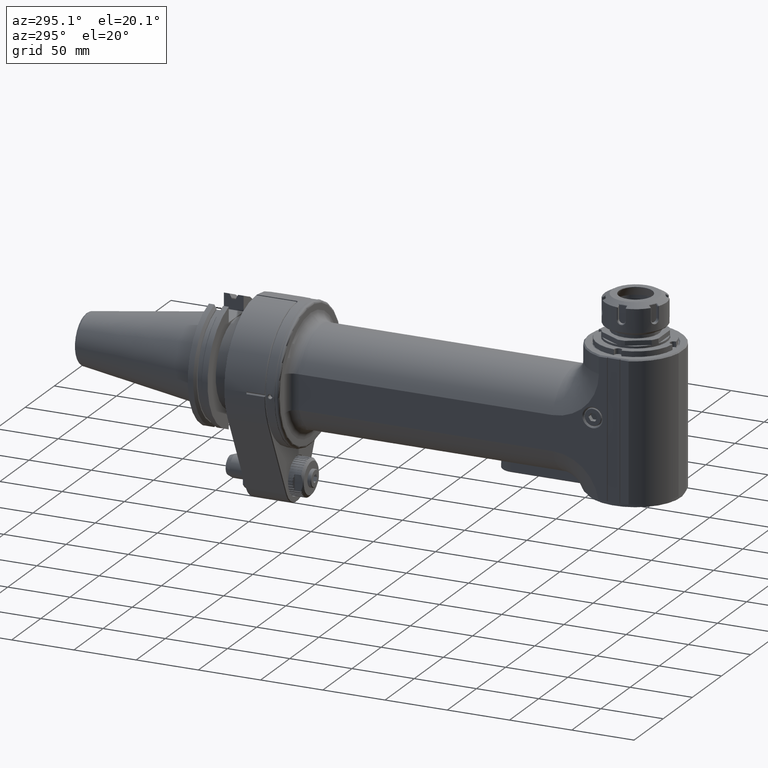
[diagram: clean part render]
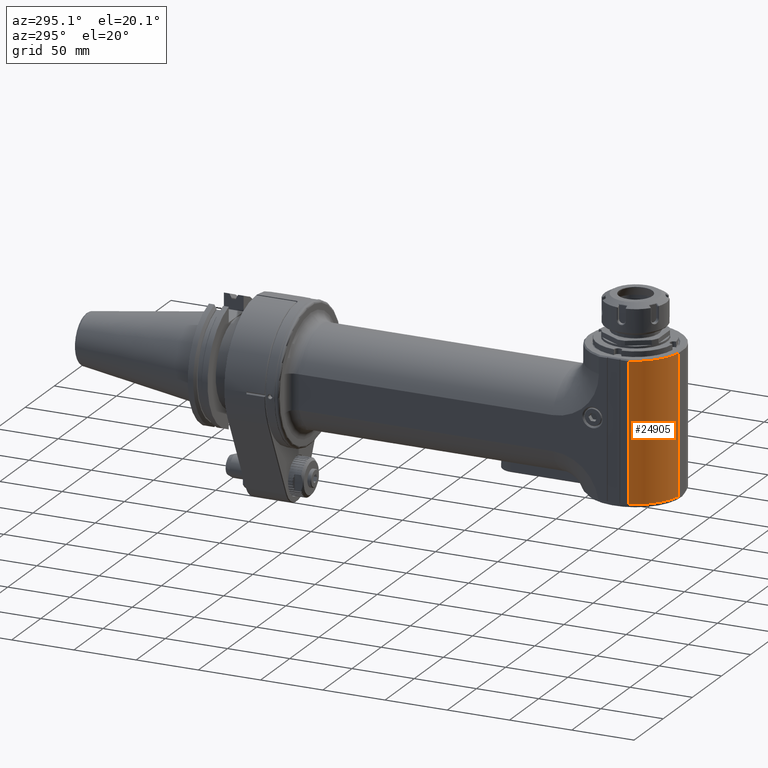
[diagram: same view with one face highlighted and labeled with its STEP entity id]
A machine part, auxiliary view. The second image highlights one B-rep face of the part: STEP entity #24905.
In plain terms, the highlighted cylindrical surface (partial cylindrical patch) has radius 40 mm, axis along (0, 0, -1).
Its self-contained STEP definition (entity closure, byte-faithful):
#1023=LINE('',#37660,#3436);
#1024=LINE('',#37664,#3437);
#3436=VECTOR('',#29479,10.);
#3437=VECTOR('',#29484,10.);
#5735=CYLINDRICAL_SURFACE('',#26619,40.);
#6242=FACE_OUTER_BOUND('',#7720,.T.);
#7720=EDGE_LOOP('',(#17063,#17064,#17065,#17066));
#9244=CIRCLE('',#26498,40.);
#9313=CIRCLE('',#26620,39.99999999999);
#10213=VERTEX_POINT('',#37221);
#10240=VERTEX_POINT('',#37425);
#10241=VERTEX_POINT('',#37427);
#10308=VERTEX_POINT('',#37662);
#12828=EDGE_CURVE('',#10241,#10240,#9244,.T.);
#12937=EDGE_CURVE('',#10213,#10241,#1023,.T.);
#12938=EDGE_CURVE('',#10308,#10213,#9313,.T.);
#12939=EDGE_CURVE('',#10308,#10240,#1024,.T.);
#17063=ORIENTED_EDGE('',*,*,#12938,.T.);
#17064=ORIENTED_EDGE('',*,*,#12937,.T.);
#17065=ORIENTED_EDGE('',*,*,#12828,.T.);
#17066=ORIENTED_EDGE('',*,*,#12939,.F.);
#24905=ADVANCED_FACE('',(#6242),#5735,.T.);
#26498=AXIS2_PLACEMENT_3D('',#37428,#29198,#29199);
#26619=AXIS2_PLACEMENT_3D('',#37661,#29480,#29481);
#26620=AXIS2_PLACEMENT_3D('',#37663,#29482,#29483);
#29198=DIRECTION('center_axis',(0.,0.,1.));
#29199=DIRECTION('ref_axis',(-0.937499999999992,-0.347985272676897,0.));
#29479=DIRECTION('',(0.,0.,-1.));
#29480=DIRECTION('center_axis',(0.,0.,-1.));
#29481=DIRECTION('ref_axis',(-1.,0.,0.));
#29482=DIRECTION('center_axis',(0.,0.,-1.));
#29483=DIRECTION('ref_axis',(-0.157619002661304,-0.987500000000028,0.));
#29484=DIRECTION('',(0.,0.,-1.));
#37221=CARTESIAN_POINT('',(-37.5000076530721,-11.9193682962213,64.9999846938277));
#37425=CARTESIAN_POINT('',(-6.304760106459,-37.5,-46.));
#37427=CARTESIAN_POINT('',(-37.5,-11.91941090708,-46.));
#37428=CARTESIAN_POINT('Origin',(0.,2.,-46.));
#37660=CARTESIAN_POINT('',(-37.5,-11.9194109070751,66.));
#37661=CARTESIAN_POINT('Origin',(0.,2.,66.));
#37662=CARTESIAN_POINT('',(-6.30476063677477,-37.500001298168,64.9999849843925));
#37663=CARTESIAN_POINT('Origin',(-8.071765468235E-12,1.999999999993,64.99996938754));
#37664=CARTESIAN_POINT('',(-6.30476010645924,-37.5,66.));